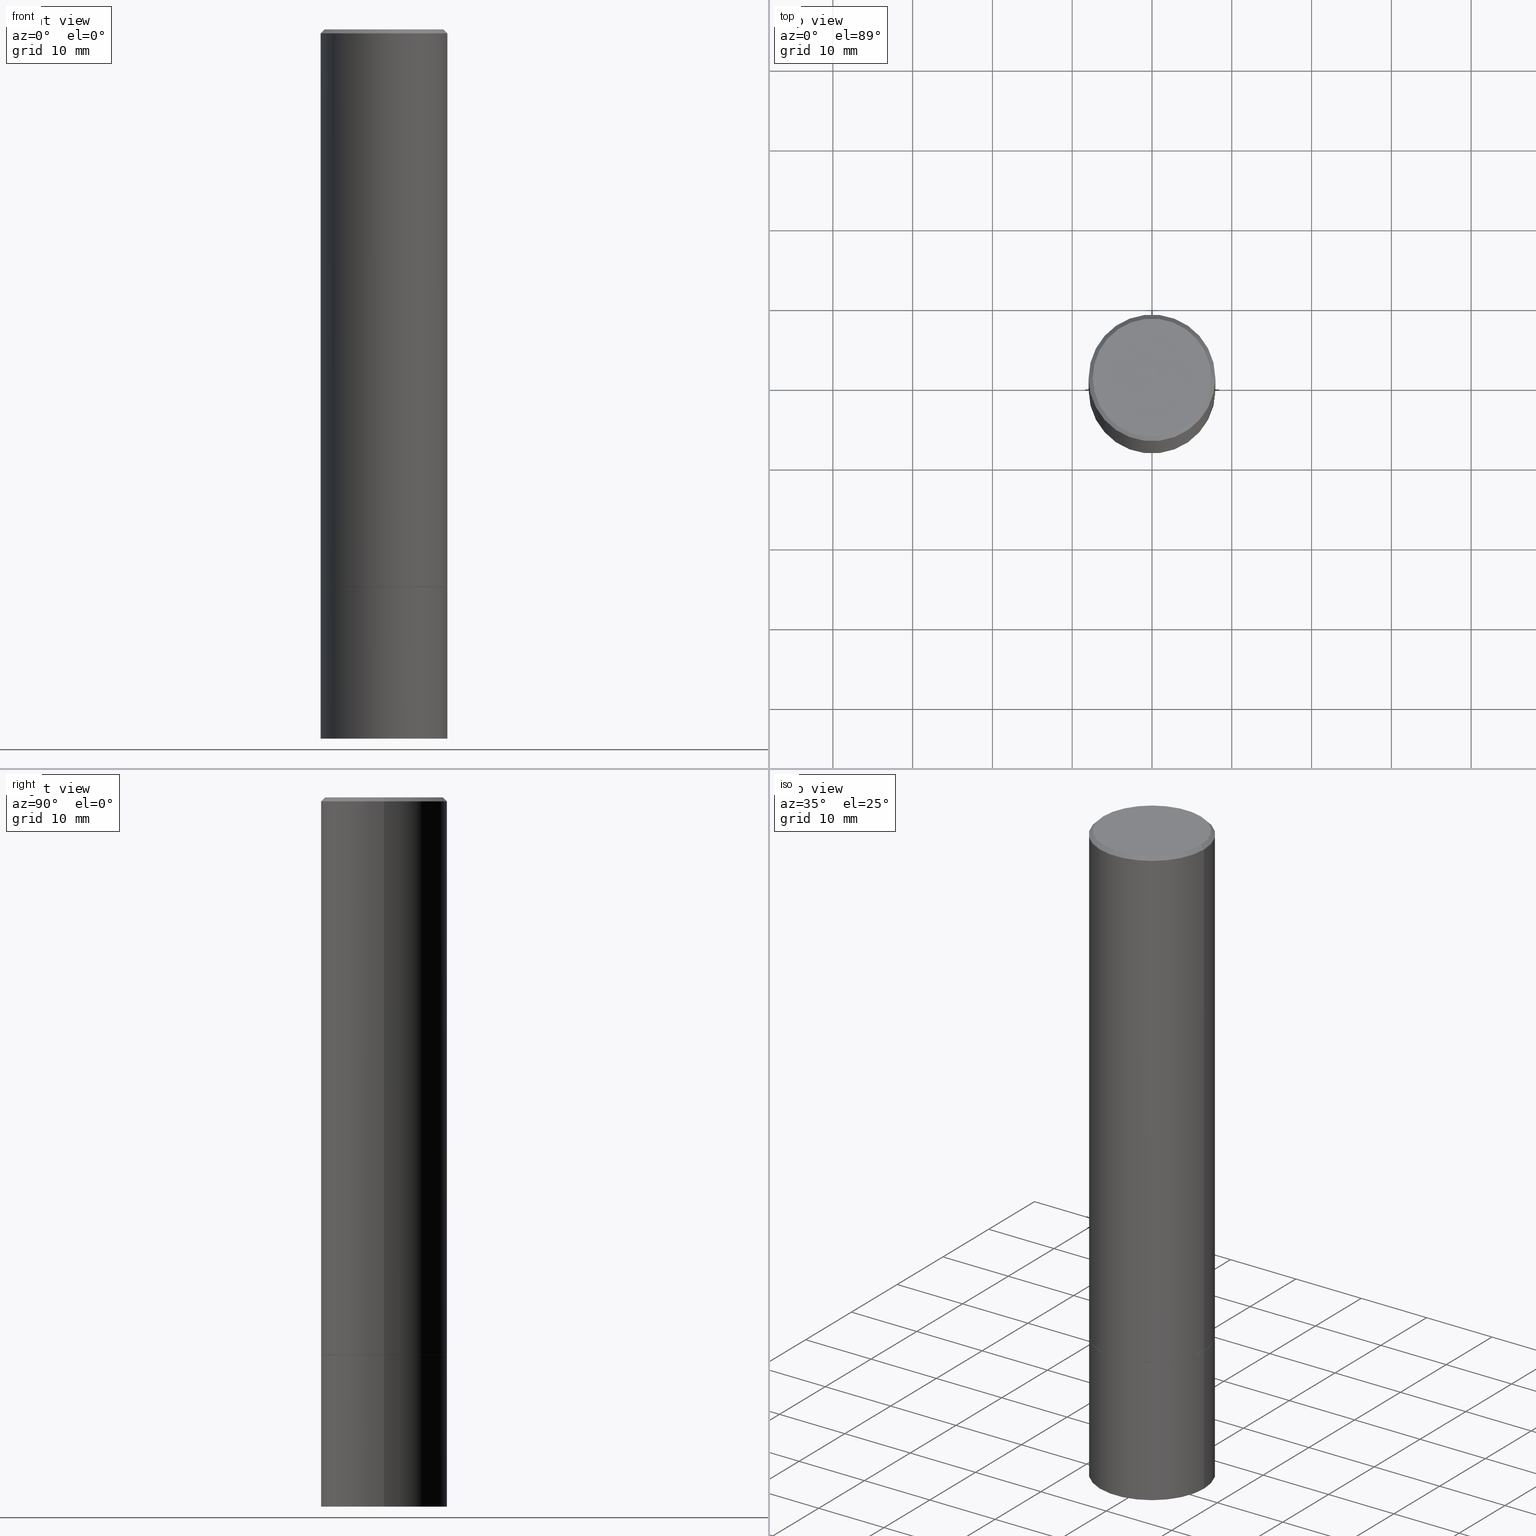
[diagram: canonical four-view strip — front | top / right | iso, engineering-drawing reading convention]
A machine part, canonical four-view strip (front | top / right | iso — engineering-drawing reading convention). The complete STEP part file that produces these views, byte-faithful:
ISO-10303-21;
HEADER;
FILE_DESCRIPTION (( 'STEP AP203' ),
    '1' );
FILE_NAME ('37067.STEP',
    '2024-02-27T20:23:09',
    ( '' ),
    ( '' ),
    'SwSTEP 2.0',
    'SolidWorks 2023',
    '' );
FILE_SCHEMA (( 'CONFIG_CONTROL_DESIGN' ));
ENDSEC;

DATA;
#1 =( NAMED_UNIT ( * ) SI_UNIT ( $, .STERADIAN. ) SOLID_ANGLE_UNIT ( ) );
#2 = CARTESIAN_POINT ( 'NONE',  ( 6.722593748202942280E-29, -9.598082200479810007E-15, -2.749000000000000554 ) ) ;
#3 = LOCAL_TIME ( 15, 23, 9.000000000000000000, #199 ) ;
#4 = AXIS2_PLACEMENT_3D ( 'NONE', #315, #180, #103 ) ;
#5 = LINE ( 'NONE', #54, #44 ) ;
#6 = DIRECTION ( 'NONE',  ( -2.445468806185136597E-29, 3.491481338843145583E-15, 1.000000000000000000 ) ) ;
#7 = VERTEX_POINT ( 'NONE', #129 ) ;
#8 = DIRECTION ( 'NONE',  ( 1.000000000000000000, -6.982962677686266711E-15, 4.876176775795936353E-29 ) ) ;
#9 = ORIENTED_EDGE ( 'NONE', *, *, #328, .F. ) ;
#10 = ORIENTED_EDGE ( 'NONE', *, *, #148, .F. ) ;
#11 = ORIENTED_EDGE ( 'NONE', *, *, #74, .T. ) ;
#12 = MANIFOLD_SOLID_BREP ( 'Body-Move/Copy2[2]', #157 ) ;
#13 = AXIS2_PLACEMENT_3D ( 'NONE', #204, #53, #173 ) ;
#14 = ORIENTED_EDGE ( 'NONE', *, *, #299, .T. ) ;
#15 = VERTEX_POINT ( 'NONE', #33 ) ;
#16 = DIRECTION ( 'NONE',  ( -1.000000000000000000, 6.982962677686265922E-15, -4.876176775795935793E-29 ) ) ;
#17 = EDGE_CURVE ( 'NONE', #244, #35, #179, .T. ) ;
#18 = MANIFOLD_SOLID_BREP ( 'Body-Move/Copy2[1]', #227 ) ;
#19 = CC_DESIGN_PERSON_AND_ORGANIZATION_ASSIGNMENT ( #256, #280, ( #305 ) ) ;
#20 = AXIS2_PLACEMENT_3D ( 'NONE', #228, #334, #345 ) ;
#21 = DIRECTION ( 'NONE',  ( -2.445468806185136597E-29, 3.491481338843145583E-15, 1.000000000000000000 ) ) ;
#22 = APPLICATION_CONTEXT ( 'configuration controlled 3d designs of mechanical parts and assemblies' ) ;
#23 = DATE_AND_TIME ( #48, #3 ) ;
#24 = DIRECTION ( 'NONE',  ( -0.7071067811868130271, 7.493145998871311837E-15, 0.7071067811862817853 ) ) ;
#25 = DIRECTION ( 'NONE',  ( -2.445468806185136597E-29, 3.491481338843145583E-15, 1.000000000000000000 ) ) ;
#26 = EDGE_LOOP ( 'NONE', ( #10, #154, #271, #341 ) ) ;
#27 = PRODUCT_DEFINITION_FORMATION_WITH_SPECIFIED_SOURCE ( 'ANY', '', #85, .NOT_KNOWN. ) ;
#28 = LINE ( 'NONE', #311, #279 ) ;
#29 = ORIENTED_EDGE ( 'NONE', *, *, #232, .T. ) ;
#30 = CARTESIAN_POINT ( 'NONE',  ( 0.3114999999999999991, -1.177676655591792219E-14, -2.750000000000000000 ) ) ;
#31 = VERTEX_POINT ( 'NONE', #268 ) ;
#32 = EDGE_CURVE ( 'NONE', #94, #15, #346, .T. ) ;
#33 = CARTESIAN_POINT ( 'NONE',  ( -0.3124999999999996114, 2.112346210000092288E-15, -0.02000000000000008715 ) ) ;
#34 = CONICAL_SURFACE ( 'NONE', #20, 0.3114999999999999991, 0.7853981633978239785 ) ;
#35 = VERTEX_POINT ( 'NONE', #152 ) ;
#36 =( CONVERSION_BASED_UNIT ( 'INCH', #66 ) LENGTH_UNIT ( ) NAMED_UNIT ( #202 ) );
#37 = EDGE_CURVE ( 'NONE', #194, #15, #168, .T. ) ;
#38 = VERTEX_POINT ( 'NONE', #142 ) ;
#39 = AXIS2_PLACEMENT_3D ( 'NONE', #92, #203, #248 ) ;
#40 = EDGE_LOOP ( 'NONE', ( #272, #245, #358, #183 ) ) ;
#41 = ADVANCED_FACE ( 'NONE', ( #46 ), #144, .T. ) ;
#42 = ADVANCED_BREP_SHAPE_REPRESENTATION ( '37067', ( #18, #12, #13 ), #259 ) ;
#43 = PERSON_AND_ORGANIZATION ( #147, #222 ) ;
#44 = VECTOR ( 'NONE', #349, 39.37007874015748143 ) ;
#45 = DIRECTION ( 'NONE',  ( 1.000000000000000000, -6.982962677686266711E-15, 4.876176775795936353E-29 ) ) ;
#46 = FACE_OUTER_BOUND ( 'NONE', #40, .T. ) ;
#47 = CYLINDRICAL_SURFACE ( 'NONE', #243, 0.3125000000000000000 ) ;
#48 = CALENDAR_DATE ( 2024, 27, 2 ) ;
#49 = UNCERTAINTY_MEASURE_WITH_UNIT (LENGTH_MEASURE( 1.000000000000000082E-05 ), #36, 'distance_accuracy_value', 'NONE');
#50 = LOCAL_TIME ( 15, 23, 9.000000000000000000, #303 ) ;
#51 = CARTESIAN_POINT ( 'NONE',  ( 0.3125000000000000000, -2.182175836776958347E-15, 1.523805242436230075E-29 ) ) ;
#52 = ADVANCED_FACE ( 'NONE', ( #172 ), #352, .T. ) ;
#53 = DIRECTION ( 'NONE',  ( 0.000000000000000000, 0.000000000000000000, 1.000000000000000000 ) ) ;
#54 = CARTESIAN_POINT ( 'NONE',  ( -0.3125000000000000000, 2.220446049250313081E-15, -1.537167215704658232E-29 ) ) ;
#55 = ORIENTED_EDGE ( 'NONE', *, *, #323, .T. ) ;
#56 = VECTOR ( 'NONE', #213, 39.37007874015748143 ) ;
#57 = LOCAL_TIME ( 15, 23, 9.000000000000000000, #238 ) ;
#58 = CC_DESIGN_DATE_AND_TIME_ASSIGNMENT ( #195, #110, ( #305 ) ) ;
#59 = ORIENTED_EDGE ( 'NONE', *, *, #17, .T. ) ;
#60 = EDGE_LOOP ( 'NONE', ( #211, #254, #59, #104 ) ) ;
#61 = EDGE_CURVE ( 'NONE', #215, #296, #137, .T. ) ;
#62 = ORIENTED_EDGE ( 'NONE', *, *, #171, .F. ) ;
#63 = VERTEX_POINT ( 'NONE', #287 ) ;
#64 = ORIENTED_EDGE ( 'NONE', *, *, #171, .T. ) ;
#65 = DIRECTION ( 'NONE',  ( 1.000000000000000000, -6.982962677686265133E-15, 4.876176775795935232E-29 ) ) ;
#66 = LENGTH_MEASURE_WITH_UNIT ( LENGTH_MEASURE( 0.02539999999999999897 ), #189 );
#67 = ORIENTED_EDGE ( 'NONE', *, *, #114, .T. ) ;
#68 = DIRECTION ( 'NONE',  ( 1.000000000000000000, -6.982962677686265922E-15, 4.876176775795935793E-29 ) ) ;
#69 = COORDINATED_UNIVERSAL_TIME_OFFSET ( 5, 0, .BEHIND. ) ;
#70 = ORIENTED_EDGE ( 'NONE', *, *, #343, .F. ) ;
#71 = ORIENTED_EDGE ( 'NONE', *, *, #251, .T. ) ;
#72 = CIRCLE ( 'NONE', #275, 0.3125000000000000000 ) ;
#73 = CC_DESIGN_DATE_AND_TIME_ASSIGNMENT ( #95, #224, ( #242 ) ) ;
#74 = EDGE_CURVE ( 'NONE', #294, #296, #330, .T. ) ;
#75 = PERSON_AND_ORGANIZATION ( #147, #222 ) ;
#76 = CC_DESIGN_PERSON_AND_ORGANIZATION_ASSIGNMENT ( #75, #255, ( #27 ) ) ;
#77 = FACE_OUTER_BOUND ( 'NONE', #182, .T. ) ;
#78 = DATE_AND_TIME ( #225, #357 ) ;
#79 = AXIS2_PLACEMENT_3D ( 'NONE', #120, #337, #282 ) ;
#80 = CARTESIAN_POINT ( 'NONE',  ( -0.3124999999999996114, 2.112346210000092288E-15, -0.02000000000000008715 ) ) ;
#81 = COORDINATED_UNIVERSAL_TIME_OFFSET ( 5, 0, .BEHIND. ) ;
#82 = APPLICATION_PROTOCOL_DEFINITION ( 'international standard', 'config_control_design', 1994, #22 ) ;
#83 = DIRECTION ( 'NONE',  ( -2.445468806185136597E-29, 3.491481338843145583E-15, 1.000000000000000000 ) ) ;
#84 = EDGE_CURVE ( 'NONE', #215, #31, #72, .T. ) ;
#85 = PRODUCT ( '37067', '37067', '', ( #289 ) ) ;
#86 = APPROVAL_ROLE ( '' ) ;
#87 = DIRECTION ( 'NONE',  ( 1.000000000000000000, -6.982962677686269077E-15, 0.000000000000000000 ) ) ;
#88 = DIRECTION ( 'NONE',  ( 1.000000000000000000, -6.982962677686265922E-15, 0.000000000000000000 ) ) ;
#89 = AXIS2_PLACEMENT_3D ( 'NONE', #226, #198, #307 ) ;
#90 = APPROVAL_PERSON_ORGANIZATION ( #43, #348, #354 ) ;
#91 = PERSON_AND_ORGANIZATION_ROLE ( 'design_owner' ) ;
#92 = CARTESIAN_POINT ( 'NONE',  ( 2.182175836777043938E-15, 0.3124999999999877875, -3.500000000000000888 ) ) ;
#93 = ORIENTED_EDGE ( 'NONE', *, *, #84, .T. ) ;
#94 = VERTEX_POINT ( 'NONE', #257 ) ;
#95 = DATE_AND_TIME ( #123, #57 ) ;
#96 = DIRECTION ( 'NONE',  ( -2.445468806185136597E-29, 3.491481338843145583E-15, 1.000000000000000000 ) ) ;
#97 = CYLINDRICAL_SURFACE ( 'NONE', #322, 0.3124999999999998335 ) ;
#98 = ORIENTED_EDGE ( 'NONE', *, *, #328, .T. ) ;
#99 = CIRCLE ( 'NONE', #185, 0.3114999999999999991 ) ;
#100 = ORIENTED_EDGE ( 'NONE', *, *, #338, .F. ) ;
#101 = CARTESIAN_POINT ( 'NONE',  ( -0.3124999999999998335, 2.220446049250311898E-15, -1.537167215704657111E-29 ) ) ;
#102 = EDGE_CURVE ( 'NONE', #38, #15, #353, .T. ) ;
#103 = DIRECTION ( 'NONE',  ( 1.000000000000000000, -6.982962677686265133E-15, 0.000000000000000000 ) ) ;
#104 = ORIENTED_EDGE ( 'NONE', *, *, #160, .F. ) ;
#105 = CARTESIAN_POINT ( 'NONE',  ( 4.890937612370294178E-31, -6.982962677686321191E-17, -0.02000000000000008715 ) ) ;
#106 = CIRCLE ( 'NONE', #115, 0.3125000000000000000 ) ;
#107 = APPROVAL_PERSON_ORGANIZATION ( #260, #143, #326 ) ;
#108 = CARTESIAN_POINT ( 'NONE',  ( -0.2924999999999995381, 2.077431396611661033E-15, 4.268512490086005323E-18 ) ) ;
#109 = CIRCLE ( 'NONE', #4, 0.3124999999999996114 ) ;
#110 = DATE_TIME_ROLE ( 'classification_date' ) ;
#111 = DIRECTION ( 'NONE',  ( 1.000000000000000000, -6.982962677686269077E-15, 0.000000000000000000 ) ) ;
#112 = FACE_OUTER_BOUND ( 'NONE', #240, .T. ) ;
#113 = APPLICATION_PROTOCOL_DEFINITION ( 'international standard', 'config_control_design', 1994, #117 ) ;
#114 = EDGE_CURVE ( 'NONE', #7, #94, #197, .T. ) ;
#115 = AXIS2_PLACEMENT_3D ( 'NONE', #300, #274, #132 ) ;
#116 = DIRECTION ( 'NONE',  ( -2.445468806185136597E-29, 3.491481338843145583E-15, 1.000000000000000000 ) ) ;
#117 = APPLICATION_CONTEXT ( 'configuration controlled 3d designs of mechanical parts and assemblies' ) ;
#118 = CARTESIAN_POINT ( 'NONE',  ( -1.043851414335219820E-46, 1.490343170380447200E-32, 4.268512490100411279E-18 ) ) ;
#119 = APPROVAL_DATE_TIME ( #162, #143 ) ;
#120 = CARTESIAN_POINT ( 'NONE',  ( 4.890937612370294178E-31, -6.982962677686321191E-17, -0.02000000000000008715 ) ) ;
#121 = DIRECTION ( 'NONE',  ( 1.000000000000000000, -6.982962677686265133E-15, 4.876176775795935232E-29 ) ) ;
#122 = EDGE_LOOP ( 'NONE', ( #29, #150, #351, #70 ) ) ;
#123 = CALENDAR_DATE ( 2024, 27, 2 ) ;
#124 = CARTESIAN_POINT ( 'NONE',  ( 6.725039217009124520E-29, -9.601573681818649859E-15, -2.750000000000000000 ) ) ;
#125 = DIRECTION ( 'NONE',  ( 2.445468806185136597E-29, -3.491481338843145583E-15, -1.000000000000000000 ) ) ;
#126 = ORIENTED_EDGE ( 'NONE', *, *, #74, .F. ) ;
#127 = CONICAL_SURFACE ( 'NONE', #331, 0.3124999999999996114, 0.7853981633974476129 ) ;
#128 = DIRECTION ( 'NONE',  ( 1.000000000000000000, -6.982962677686269077E-15, 0.000000000000000000 ) ) ;
#129 = CARTESIAN_POINT ( 'NONE',  ( -0.3114999999999999991, -7.382934605577717751E-15, -2.750000000000000000 ) ) ;
#130 = VECTOR ( 'NONE', #360, 39.37007874015748854 ) ;
#131 = CIRCLE ( 'NONE', #191, 0.3114999999999999991 ) ;
#132 = DIRECTION ( 'NONE',  ( 1.000000000000000000, -6.982962677686269077E-15, 0.000000000000000000 ) ) ;
#133 = CIRCLE ( 'NONE', #310, 0.3125000000000000000 ) ;
#134 = DIRECTION ( 'NONE',  ( -2.445468806185136597E-29, 3.491481338843145583E-15, 1.000000000000000000 ) ) ;
#135 = ADVANCED_FACE ( 'NONE', ( #139 ), #306, .F. ) ;
#136 = DIRECTION ( 'NONE',  ( 1.000000000000000000, -6.982962677686266711E-15, 4.876067333457697324E-29 ) ) ;
#137 = LINE ( 'NONE', #51, #266 ) ;
#138 = DIRECTION ( 'NONE',  ( -2.445468806185136597E-29, 3.491481338843145583E-15, 1.000000000000000000 ) ) ;
#139 = FACE_OUTER_BOUND ( 'NONE', #176, .T. ) ;
#140 = ADVANCED_FACE ( 'NONE', ( #264 ), #47, .T. ) ;
#141 = DIRECTION ( 'NONE',  ( 1.000000000000000000, -6.982962677686269077E-15, 0.000000000000000000 ) ) ;
#142 = CARTESIAN_POINT ( 'NONE',  ( 0.3124999999999996114, -2.213735251080464150E-15, -0.02000000000000008715 ) ) ;
#143 = APPROVAL ( #333, 'UNSPECIFIED' ) ;
#144 = CONICAL_SURFACE ( 'NONE', #79, 0.3124999999999996114, 0.7853981633974476129 ) ;
#145 = AXIS2_PLACEMENT_3D ( 'NONE', #318, #298, #16 ) ;
#146 = LOCAL_TIME ( 15, 23, 9.000000000000000000, #81 ) ;
#147 = PERSON ( 'UNSPECIFIED', 'UNSPECIFIED', 'UNSPECIFIED', ('UNSPECIFIED'), ('UNSPECIFIED'), ('UNSPECIFIED') ) ;
#148 = EDGE_CURVE ( 'NONE', #63, #194, #356, .T. ) ;
#149 = DIRECTION ( 'NONE',  ( 0.7071067811868130271, -2.468850131085038979E-15, 0.7071067811862817853 ) ) ;
#150 = ORIENTED_EDGE ( 'NONE', *, *, #32, .T. ) ;
#151 = DIRECTION ( 'NONE',  ( -2.445468806185136597E-29, 3.491481338843145583E-15, 1.000000000000000000 ) ) ;
#152 = CARTESIAN_POINT ( 'NONE',  ( 0.3125000000000000000, -1.178025803725676835E-14, -2.749000000000000554 ) ) ;
#153 = APPROVAL_PERSON_ORGANIZATION ( #169, #350, #86 ) ;
#154 = ORIENTED_EDGE ( 'NONE', *, *, #359, .T. ) ;
#155 = ORIENTED_EDGE ( 'NONE', *, *, #232, .F. ) ;
#156 = DIRECTION ( 'NONE',  ( 1.000000000000000000, -6.982962677686265922E-15, 0.000000000000000000 ) ) ;
#157 = CLOSED_SHELL ( 'NONE', ( #277, #317, #283, #41, #309, #52, #362, #196 ) ) ;
#158 = CC_DESIGN_APPROVAL ( #350, ( #242 ) ) ;
#159 = FACE_OUTER_BOUND ( 'NONE', #237, .T. ) ;
#160 = EDGE_CURVE ( 'NONE', #94, #35, #165, .T. ) ;
#161 = PERSON_AND_ORGANIZATION_ROLE ( 'design_supplier' ) ;
#162 = DATE_AND_TIME ( #364, #50 ) ;
#163 = APPROVAL_DATE_TIME ( #78, #348 ) ;
#164 = CARTESIAN_POINT ( 'NONE',  ( -1.043851414335219820E-46, 1.490343170380447200E-32, 4.268512490100411279E-18 ) ) ;
#165 = CIRCLE ( 'NONE', #320, 0.3125000000000000000 ) ;
#166 = DIRECTION ( 'NONE',  ( -2.445468806185136597E-29, 3.491481338843145583E-15, 1.000000000000000000 ) ) ;
#167 = ADVANCED_FACE ( 'NONE', ( #77 ), #304, .T. ) ;
#168 = LINE ( 'NONE', #80, #130 ) ;
#169 = PERSON_AND_ORGANIZATION ( #147, #222 ) ;
#170 = CARTESIAN_POINT ( 'NONE',  ( 6.725039217009124520E-29, -9.601573681818649859E-15, -2.750000000000000000 ) ) ;
#171 = EDGE_CURVE ( 'NONE', #296, #294, #175, .T. ) ;
#172 = FACE_OUTER_BOUND ( 'NONE', #60, .T. ) ;
#173 = DIRECTION ( 'NONE',  ( 1.000000000000000000, 0.000000000000000000, 0.000000000000000000 ) ) ;
#174 = DIRECTION ( 'NONE',  ( -2.445468806185136877E-29, 3.491481338843145188E-15, 1.000000000000000000 ) ) ;
#175 = CIRCLE ( 'NONE', #314, 0.3125000000000000000 ) ;
#176 = EDGE_LOOP ( 'NONE', ( #64, #11 ) ) ;
#177 = ADVANCED_FACE ( 'NONE', ( #246 ), #340, .T. ) ;
#178 = EDGE_LOOP ( 'NONE', ( #71, #186 ) ) ;
#179 = LINE ( 'NONE', #30, #339 ) ;
#180 = DIRECTION ( 'NONE',  ( -2.445468806185136597E-29, 3.491481338843145583E-15, 1.000000000000000000 ) ) ;
#181 = DIRECTION ( 'NONE',  ( -1.000000000000000000, 6.982962677686266711E-15, 0.000000000000000000 ) ) ;
#182 = EDGE_LOOP ( 'NONE', ( #93, #98, #62, #219 ) ) ;
#183 = ORIENTED_EDGE ( 'NONE', *, *, #338, .T. ) ;
#184 = CARTESIAN_POINT ( 'NONE',  ( 6.725039217009124520E-29, -9.601573681818649859E-15, -2.750000000000000000 ) ) ;
#185 = AXIS2_PLACEMENT_3D ( 'NONE', #124, #205, #241 ) ;
#186 = ORIENTED_EDGE ( 'NONE', *, *, #148, .T. ) ;
#187 = CYLINDRICAL_SURFACE ( 'NONE', #234, 0.3124999999999998335 ) ;
#188 = CARTESIAN_POINT ( 'NONE',  ( 0.3125000000000000000, -1.440236052272796769E-14, -3.500000000000000000 ) ) ;
#189 =( LENGTH_UNIT ( ) NAMED_UNIT ( * ) SI_UNIT ( $, .METRE. ) );
#190 = DIRECTION ( 'NONE',  ( -2.438088387897960049E-29, 3.491481338843145188E-15, 1.000000000000000000 ) ) ;
#191 = AXIS2_PLACEMENT_3D ( 'NONE', #221, #273, #156 ) ;
#192 = PERSON_AND_ORGANIZATION ( #147, #222 ) ;
#193 = CARTESIAN_POINT ( 'NONE',  ( 0.3114999999999999991, -1.177676655591792219E-14, -2.750000000000000000 ) ) ;
#194 = VERTEX_POINT ( 'NONE', #108 ) ;
#195 = DATE_AND_TIME ( #278, #146 ) ;
#196 = ADVANCED_FACE ( 'NONE', ( #217 ), #250, .F. ) ;
#197 = LINE ( 'NONE', #335, #220 ) ;
#198 = DIRECTION ( 'NONE',  ( 2.438088387897960049E-29, -3.491481338843145188E-15, -1.000000000000000000 ) ) ;
#199 = COORDINATED_UNIVERSAL_TIME_OFFSET ( 5, 0, .BEHIND. ) ;
#200 = CARTESIAN_POINT ( 'NONE',  ( 8.559140821647976968E-29, -1.222018468595100934E-14, -3.500000000000000000 ) ) ;
#201 = CARTESIAN_POINT ( 'NONE',  ( 6.725039217009124520E-29, -9.601573681818649859E-15, -2.750000000000000000 ) ) ;
#202 = DIMENSIONAL_EXPONENTS ( 1.000000000000000000, 0.000000000000000000, 0.000000000000000000, 0.000000000000000000, 0.000000000000000000, 0.000000000000000000, 0.000000000000000000 ) ;
#203 = DIRECTION ( 'NONE',  ( 2.438088387897960049E-29, -3.491481338843145188E-15, -1.000000000000000000 ) ) ;
#204 = CARTESIAN_POINT ( 'NONE',  ( 0.000000000000000000, 0.000000000000000000, 0.000000000000000000 ) ) ;
#205 = DIRECTION ( 'NONE',  ( -2.445468806185136597E-29, 3.491481338843145583E-15, 1.000000000000000000 ) ) ;
#206 = FACE_OUTER_BOUND ( 'NONE', #325, .T. ) ;
#207 = ORIENTED_EDGE ( 'NONE', *, *, #323, .F. ) ;
#208 = PERSON_AND_ORGANIZATION_ROLE ( 'creator' ) ;
#209 = CARTESIAN_POINT ( 'NONE',  ( 0.000000000000000000, 0.000000000000000000, 0.000000000000000000 ) ) ;
#210 = AXIS2_PLACEMENT_3D ( 'NONE', #276, #190, #68 ) ;
#211 = ORIENTED_EDGE ( 'NONE', *, *, #114, .F. ) ;
#212 = ORIENTED_EDGE ( 'NONE', *, *, #299, .F. ) ;
#213 = DIRECTION ( 'NONE',  ( -2.445468806185136877E-29, 3.491481338843145188E-15, 1.000000000000000000 ) ) ;
#214 = EDGE_CURVE ( 'NONE', #7, #244, #131, .T. ) ;
#215 = VERTEX_POINT ( 'NONE', #188 ) ;
#216 = FACE_OUTER_BOUND ( 'NONE', #26, .T. ) ;
#217 = FACE_OUTER_BOUND ( 'NONE', #178, .T. ) ;
#218 = CARTESIAN_POINT ( 'NONE',  ( 0.3125000000000000000, -1.178374951859560978E-14, -2.750000000000000000 ) ) ;
#219 = ORIENTED_EDGE ( 'NONE', *, *, #61, .F. ) ;
#220 = VECTOR ( 'NONE', #24, 39.37007874015748854 ) ;
#221 = CARTESIAN_POINT ( 'NONE',  ( 6.725039217009124520E-29, -9.601573681818649859E-15, -2.750000000000000000 ) ) ;
#222 = ORGANIZATION ( 'UNSPECIFIED', 'UNSPECIFIED', '' ) ;
#223 = PRODUCT_RELATED_PRODUCT_CATEGORY ( 'detail', '', ( #85 ) ) ;
#224 = DATE_TIME_ROLE ( 'creation_date' ) ;
#225 = CALENDAR_DATE ( 2024, 27, 2 ) ;
#226 = CARTESIAN_POINT ( 'NONE',  ( 2.182175836777025400E-15, 0.3124999999999903966, -2.750000000000000888 ) ) ;
#227 = CLOSED_SHELL ( 'NONE', ( #167, #177, #135, #140 ) ) ;
#228 = CARTESIAN_POINT ( 'NONE',  ( 6.725039217009124520E-29, -9.601573681818649859E-15, -2.750000000000000000 ) ) ;
#229 = VECTOR ( 'NONE', #292, 39.37007874015748854 ) ;
#230 = CC_DESIGN_APPROVAL ( #348, ( #305 ) ) ;
#231 = CARTESIAN_POINT ( 'NONE',  ( 4.890937612370294178E-31, -6.982962677686321191E-17, -0.02000000000000008715 ) ) ;
#232 = EDGE_CURVE ( 'NONE', #35, #94, #106, .T. ) ;
#233 = DIRECTION ( 'NONE',  ( -2.445468806185136877E-29, 3.491481338843145188E-15, 1.000000000000000000 ) ) ;
#234 = AXIS2_PLACEMENT_3D ( 'NONE', #267, #6, #121 ) ;
#235 = DIRECTION ( 'NONE',  ( -2.445468806185136597E-29, 3.491481338843145583E-15, 1.000000000000000000 ) ) ;
#236 = FACE_OUTER_BOUND ( 'NONE', #122, .T. ) ;
#237 = EDGE_LOOP ( 'NONE', ( #207, #252 ) ) ;
#238 = COORDINATED_UNIVERSAL_TIME_OFFSET ( 5, 0, .BEHIND. ) ;
#239 = LINE ( 'NONE', #342, #229 ) ;
#240 = EDGE_LOOP ( 'NONE', ( #55, #67, #155, #302 ) ) ;
#241 = DIRECTION ( 'NONE',  ( 1.000000000000000000, -6.982962677686265922E-15, 0.000000000000000000 ) ) ;
#242 = PRODUCT_DEFINITION ( 'UNKNOWN', '', #27, #253 ) ;
#243 = AXIS2_PLACEMENT_3D ( 'NONE', #285, #363, #45 ) ;
#244 = VERTEX_POINT ( 'NONE', #193 ) ;
#245 = ORIENTED_EDGE ( 'NONE', *, *, #251, .F. ) ;
#246 = FACE_OUTER_BOUND ( 'NONE', #293, .T. ) ;
#247 = ORIENTED_EDGE ( 'NONE', *, *, #61, .T. ) ;
#248 = DIRECTION ( 'NONE',  ( -1.000000000000000000, 6.982962677686265922E-15, -4.876176775795935793E-29 ) ) ;
#249 = AXIS2_PLACEMENT_3D ( 'NONE', #231, #134, #329 ) ;
#250 = PLANE ( 'NONE',  #145 ) ;
#251 = EDGE_CURVE ( 'NONE', #194, #63, #297, .T. ) ;
#252 = ORIENTED_EDGE ( 'NONE', *, *, #214, .F. ) ;
#253 = DESIGN_CONTEXT ( 'detailed design', #117, 'design' ) ;
#254 = ORIENTED_EDGE ( 'NONE', *, *, #214, .T. ) ;
#255 = PERSON_AND_ORGANIZATION_ROLE ( 'creator' ) ;
#256 = PERSON_AND_ORGANIZATION ( #147, #222 ) ;
#257 = CARTESIAN_POINT ( 'NONE',  ( -0.3125000000000000000, -2.613509864378020417E-15, -2.749000000000000554 ) ) ;
#258 = PRODUCT_DEFINITION_SHAPE ( 'NONE', 'NONE',  #242 ) ;
#259 =( GEOMETRIC_REPRESENTATION_CONTEXT ( 3 ) GLOBAL_UNCERTAINTY_ASSIGNED_CONTEXT ( ( #49 ) ) GLOBAL_UNIT_ASSIGNED_CONTEXT ( ( #36, #263, #1 ) ) REPRESENTATION_CONTEXT ( 'NONE', 'WORKASPACE' ) );
#260 = PERSON_AND_ORGANIZATION ( #147, #222 ) ;
#261 = APPROVAL_DATE_TIME ( #23, #350 ) ;
#262 = CC_DESIGN_PERSON_AND_ORGANIZATION_ASSIGNMENT ( #192, #161, ( #27 ) ) ;
#263 =( NAMED_UNIT ( * ) PLANE_ANGLE_UNIT ( ) SI_UNIT ( $, .RADIAN. ) );
#264 = FACE_OUTER_BOUND ( 'NONE', #291, .T. ) ;
#265 = APPROVAL_STATUS ( 'not_yet_approved' ) ;
#266 = VECTOR ( 'NONE', #233, 39.37007874015748143 ) ;
#267 = CARTESIAN_POINT ( 'NONE',  ( 0.000000000000000000, 0.000000000000000000, 0.000000000000000000 ) ) ;
#268 = CARTESIAN_POINT ( 'NONE',  ( -0.3125000000000000000, -8.690433134634516520E-15, -3.500000000000000000 ) ) ;
#269 = DIRECTION ( 'NONE',  ( 1.000000000000000000, -6.982962677686269077E-15, 0.000000000000000000 ) ) ;
#270 = AXIS2_PLACEMENT_3D ( 'NONE', #281, #21, #8 ) ;
#271 = ORIENTED_EDGE ( 'NONE', *, *, #102, .T. ) ;
#272 = ORIENTED_EDGE ( 'NONE', *, *, #359, .F. ) ;
#273 = DIRECTION ( 'NONE',  ( -2.445468806185136597E-29, 3.491481338843145583E-15, 1.000000000000000000 ) ) ;
#274 = DIRECTION ( 'NONE',  ( -2.445468806185136597E-29, 3.491481338843145583E-15, 1.000000000000000000 ) ) ;
#275 = AXIS2_PLACEMENT_3D ( 'NONE', #200, #25, #111 ) ;
#276 = CARTESIAN_POINT ( 'NONE',  ( 6.725039217009124520E-29, -9.601573681818649859E-15, -2.750000000000000000 ) ) ;
#277 = ADVANCED_FACE ( 'NONE', ( #112 ), #34, .T. ) ;
#278 = CALENDAR_DATE ( 2024, 27, 2 ) ;
#279 = VECTOR ( 'NONE', #174, 39.37007874015748143 ) ;
#280 = PERSON_AND_ORGANIZATION_ROLE ( 'classification_officer' ) ;
#281 = CARTESIAN_POINT ( 'NONE',  ( 0.000000000000000000, 0.000000000000000000, 0.000000000000000000 ) ) ;
#282 = DIRECTION ( 'NONE',  ( -1.000000000000000000, 6.982962677686266711E-15, 0.000000000000000000 ) ) ;
#283 = ADVANCED_FACE ( 'NONE', ( #216 ), #127, .T. ) ;
#284 = APPROVAL_STATUS ( 'not_yet_approved' ) ;
#285 = CARTESIAN_POINT ( 'NONE',  ( 0.000000000000000000, 0.000000000000000000, 0.000000000000000000 ) ) ;
#286 = CC_DESIGN_PERSON_AND_ORGANIZATION_ASSIGNMENT ( #366, #208, ( #242 ) ) ;
#287 = CARTESIAN_POINT ( 'NONE',  ( 0.2924999999999995381, -2.110215457714316776E-15, 4.268512490114932791E-18 ) ) ;
#288 = AXIS2_PLACEMENT_3D ( 'NONE', #170, #116, #88 ) ;
#289 = MECHANICAL_CONTEXT ( 'NONE', #22, 'mechanical' ) ;
#290 = AXIS2_PLACEMENT_3D ( 'NONE', #164, #138, #136 ) ;
#291 = EDGE_LOOP ( 'NONE', ( #9, #14, #247, #126 ) ) ;
#292 = DIRECTION ( 'NONE',  ( 0.7071067811865469066, -7.319954787623252890E-15, -0.7071067811865479058 ) ) ;
#293 = EDGE_LOOP ( 'NONE', ( #312, #212 ) ) ;
#294 = VERTEX_POINT ( 'NONE', #295 ) ;
#295 = CARTESIAN_POINT ( 'NONE',  ( -0.3125000000000000000, -8.690433134634516520E-15, -2.750000000000000000 ) ) ;
#296 = VERTEX_POINT ( 'NONE', #218 ) ;
#297 = CIRCLE ( 'NONE', #290, 0.2924999999999995381 ) ;
#298 = DIRECTION ( 'NONE',  ( 2.438088387897960049E-29, -3.491481338843145188E-15, -1.000000000000000000 ) ) ;
#299 = EDGE_CURVE ( 'NONE', #31, #215, #133, .T. ) ;
#300 = CARTESIAN_POINT ( 'NONE',  ( 6.722593748202942280E-29, -9.598082200479810007E-15, -2.749000000000000554 ) ) ;
#301 = CC_DESIGN_PERSON_AND_ORGANIZATION_ASSIGNMENT ( #336, #91, ( #85 ) ) ;
#302 = ORIENTED_EDGE ( 'NONE', *, *, #17, .F. ) ;
#303 = COORDINATED_UNIVERSAL_TIME_OFFSET ( 5, 0, .BEHIND. ) ;
#304 = CYLINDRICAL_SURFACE ( 'NONE', #270, 0.3125000000000000000 ) ;
#305 = SECURITY_CLASSIFICATION ( '', '', #327 ) ;
#306 = PLANE ( 'NONE',  #89 ) ;
#307 = DIRECTION ( 'NONE',  ( -1.000000000000000000, 6.982962677686265922E-15, -4.876176775795935793E-29 ) ) ;
#308 = DIRECTION ( 'NONE',  ( 1.000000000000000000, -6.982962677686266711E-15, 4.876067333457697324E-29 ) ) ;
#309 = ADVANCED_FACE ( 'NONE', ( #206 ), #187, .T. ) ;
#310 = AXIS2_PLACEMENT_3D ( 'NONE', #319, #151, #269 ) ;
#311 = CARTESIAN_POINT ( 'NONE',  ( 0.3124999999999998335, -2.182175836776956769E-15, 1.523805242436228954E-29 ) ) ;
#312 = ORIENTED_EDGE ( 'NONE', *, *, #84, .F. ) ;
#313 = ORIENTED_EDGE ( 'NONE', *, *, #160, .T. ) ;
#314 = AXIS2_PLACEMENT_3D ( 'NONE', #184, #96, #128 ) ;
#315 = CARTESIAN_POINT ( 'NONE',  ( 4.890937612370294178E-31, -6.982962677686321191E-17, -0.02000000000000008715 ) ) ;
#316 = DIRECTION ( 'NONE',  ( -2.445468806185136597E-29, 3.491481338843145583E-15, 1.000000000000000000 ) ) ;
#317 = ADVANCED_FACE ( 'NONE', ( #236 ), #97, .T. ) ;
#318 = CARTESIAN_POINT ( 'NONE',  ( 2.042516583223229384E-15, 0.2924999999999995381, -1.019124035366568423E-15 ) ) ;
#319 = CARTESIAN_POINT ( 'NONE',  ( 8.559140821647976968E-29, -1.222018468595100934E-14, -3.500000000000000000 ) ) ;
#320 = AXIS2_PLACEMENT_3D ( 'NONE', #2, #235, #141 ) ;
#321 = ORIENTED_EDGE ( 'NONE', *, *, #32, .F. ) ;
#322 = AXIS2_PLACEMENT_3D ( 'NONE', #209, #316, #65 ) ;
#323 = EDGE_CURVE ( 'NONE', #244, #7, #99, .T. ) ;
#324 = CC_DESIGN_SECURITY_CLASSIFICATION ( #305, ( #27 ) ) ;
#325 = EDGE_LOOP ( 'NONE', ( #321, #313, #347, #100 ) ) ;
#326 = APPROVAL_ROLE ( '' ) ;
#327 = SECURITY_CLASSIFICATION_LEVEL ( 'unclassified' ) ;
#328 = EDGE_CURVE ( 'NONE', #31, #294, #5, .T. ) ;
#329 = DIRECTION ( 'NONE',  ( 1.000000000000000000, -6.982962677686265133E-15, 0.000000000000000000 ) ) ;
#330 = CIRCLE ( 'NONE', #361, 0.3125000000000000000 ) ;
#331 = AXIS2_PLACEMENT_3D ( 'NONE', #105, #125, #181 ) ;
#332 = CC_DESIGN_APPROVAL ( #143, ( #27 ) ) ;
#333 = APPROVAL_STATUS ( 'not_yet_approved' ) ;
#334 = DIRECTION ( 'NONE',  ( -2.445468806185136597E-29, 3.491481338843145583E-15, 1.000000000000000000 ) ) ;
#335 = CARTESIAN_POINT ( 'NONE',  ( -0.3114999999999999991, -7.388233059925938575E-15, -2.750000000000000000 ) ) ;
#336 = PERSON_AND_ORGANIZATION ( #147, #222 ) ;
#337 = DIRECTION ( 'NONE',  ( 2.445468806185136597E-29, -3.491481338843145583E-15, -1.000000000000000000 ) ) ;
#338 = EDGE_CURVE ( 'NONE', #15, #38, #109, .T. ) ;
#339 = VECTOR ( 'NONE', #149, 39.37007874015748854 ) ;
#340 = PLANE ( 'NONE',  #39 ) ;
#341 = ORIENTED_EDGE ( 'NONE', *, *, #37, .F. ) ;
#342 = CARTESIAN_POINT ( 'NONE',  ( 0.3124999999999996114, -2.213735251080464150E-15, -0.02000000000000008715 ) ) ;
#343 = EDGE_CURVE ( 'NONE', #35, #38, #28, .T. ) ;
#344 = AXIS2_PLACEMENT_3D ( 'NONE', #118, #166, #308 ) ;
#345 = DIRECTION ( 'NONE',  ( 1.000000000000000000, -6.982962677686265922E-15, 0.000000000000000000 ) ) ;
#346 = LINE ( 'NONE', #101, #56 ) ;
#347 = ORIENTED_EDGE ( 'NONE', *, *, #343, .T. ) ;
#348 = APPROVAL ( #265, 'UNSPECIFIED' ) ;
#349 = DIRECTION ( 'NONE',  ( -2.445468806185136877E-29, 3.491481338843145188E-15, 1.000000000000000000 ) ) ;
#350 = APPROVAL ( #284, 'UNSPECIFIED' ) ;
#351 = ORIENTED_EDGE ( 'NONE', *, *, #102, .F. ) ;
#352 = CONICAL_SURFACE ( 'NONE', #288, 0.3114999999999999991, 0.7853981633978239785 ) ;
#353 = CIRCLE ( 'NONE', #249, 0.3124999999999996114 ) ;
#354 = APPROVAL_ROLE ( '' ) ;
#355 = PLANE ( 'NONE',  #210 ) ;
#356 = CIRCLE ( 'NONE', #344, 0.2924999999999995381 ) ;
#357 = LOCAL_TIME ( 15, 23, 9.000000000000000000, #69 ) ;
#358 = ORIENTED_EDGE ( 'NONE', *, *, #37, .T. ) ;
#359 = EDGE_CURVE ( 'NONE', #63, #38, #239, .T. ) ;
#360 = DIRECTION ( 'NONE',  ( -0.7071067811865469066, 2.468850131082251144E-15, -0.7071067811865479058 ) ) ;
#361 = AXIS2_PLACEMENT_3D ( 'NONE', #201, #83, #87 ) ;
#362 = ADVANCED_FACE ( 'NONE', ( #159 ), #355, .F. ) ;
#363 = DIRECTION ( 'NONE',  ( -2.445468806185136597E-29, 3.491481338843145583E-15, 1.000000000000000000 ) ) ;
#364 = CALENDAR_DATE ( 2024, 27, 2 ) ;
#365 = SHAPE_DEFINITION_REPRESENTATION ( #258, #42 ) ;
#366 = PERSON_AND_ORGANIZATION ( #147, #222 ) ;
ENDSEC;
END-ISO-10303-21;
